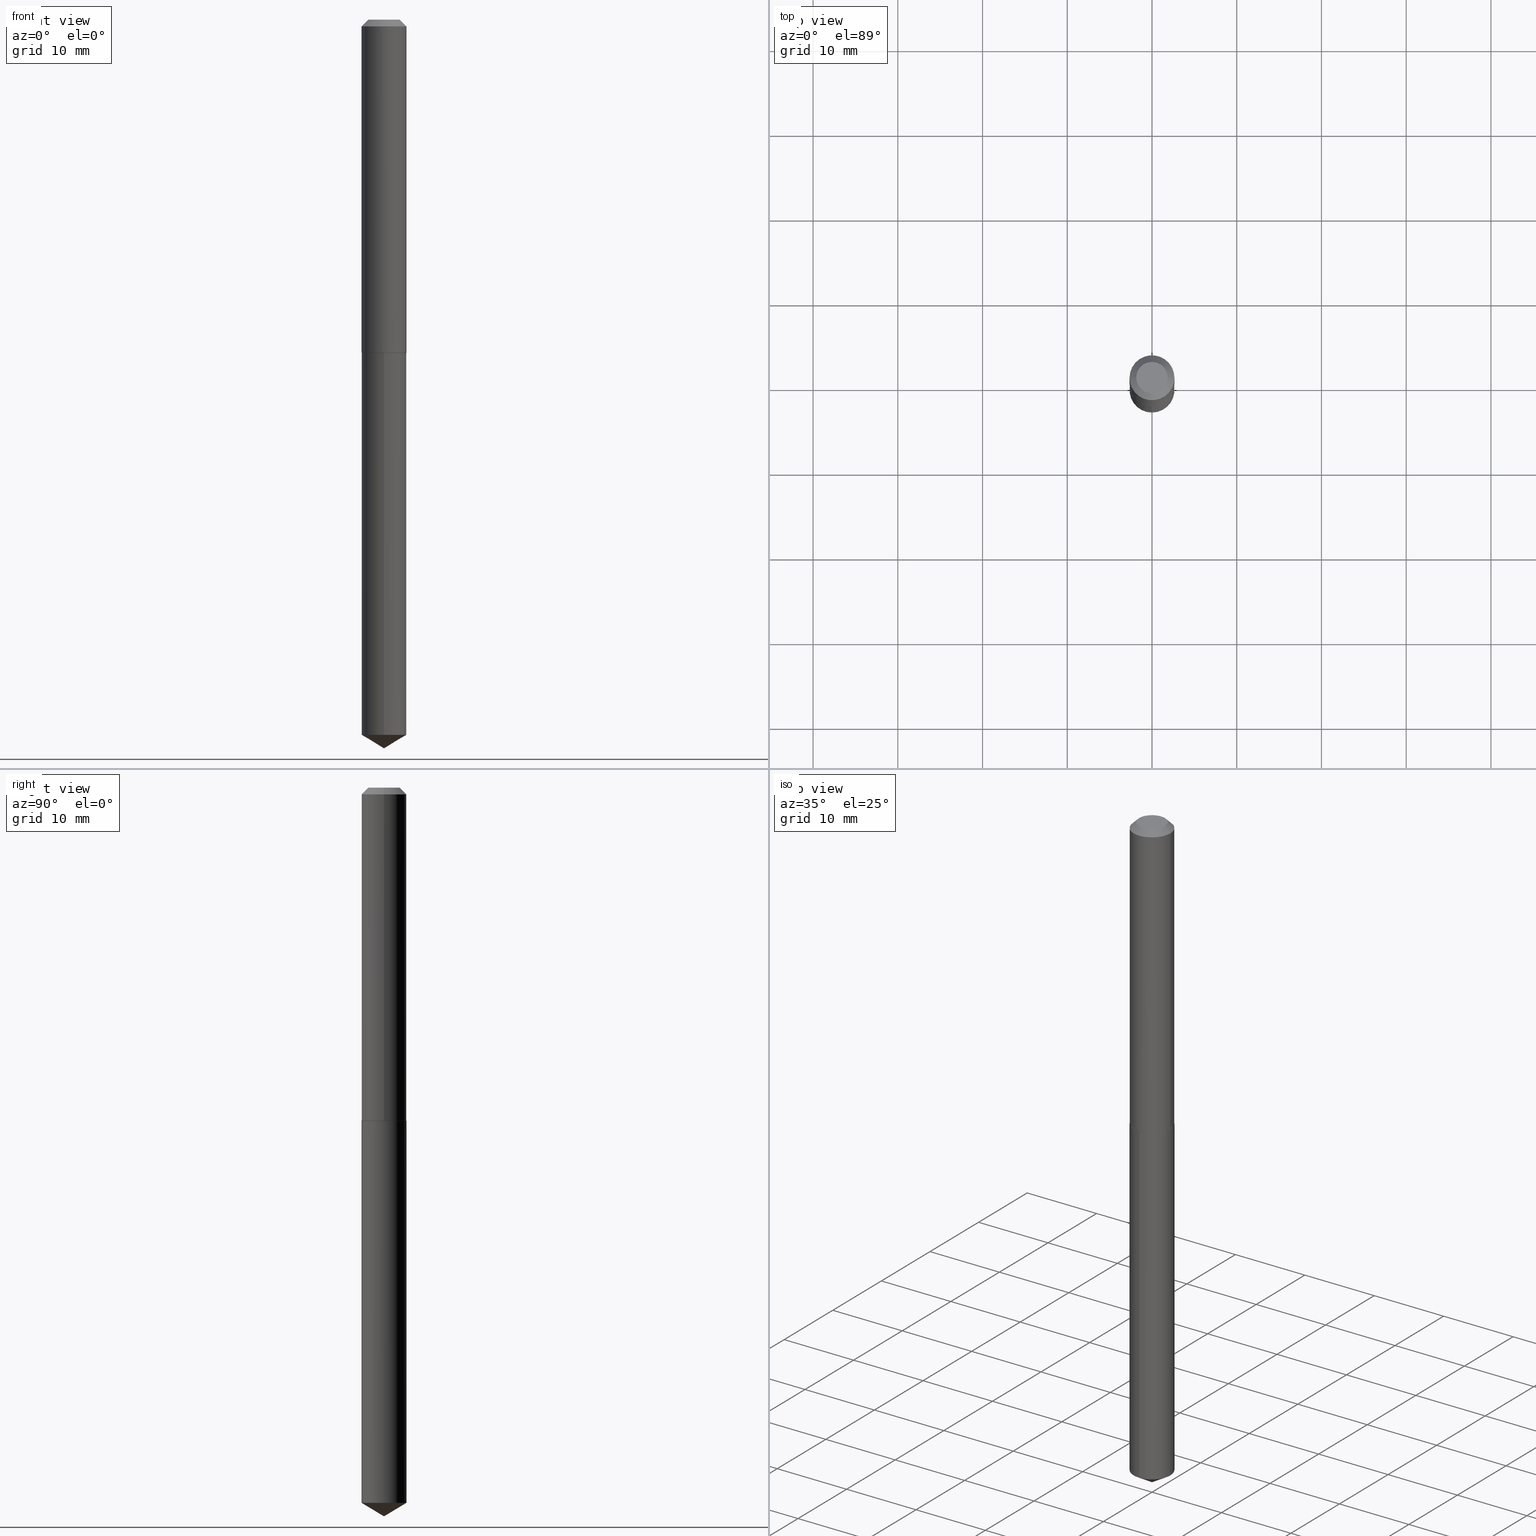
[diagram: canonical four-view strip — front | top / right | iso, engineering-drawing reading convention]
A machine part, canonical four-view strip (front | top / right | iso — engineering-drawing reading convention). The complete STEP part file that produces these views, byte-faithful:
ISO-10303-21;
HEADER;
FILE_DESCRIPTION (( 'STEP AP203' ),
    '1' );
FILE_NAME ('68328.STEP',
    '2024-04-23T13:06:53',
    ( '' ),
    ( '' ),
    'SwSTEP 2.0',
    'SolidWorks 2023',
    '' );
FILE_SCHEMA (( 'CONFIG_CONTROL_DESIGN' ));
ENDSEC;

DATA;
#1 = DIRECTION ( 'NONE',  ( -2.445468806185136597E-29, 3.491481338843145583E-15, 1.000000000000000000 ) ) ;
#2 = CC_DESIGN_PERSON_AND_ORGANIZATION_ASSIGNMENT ( #355, #148, ( #48 ) ) ;
#3 = AXIS2_PLACEMENT_3D ( 'NONE', #218, #166, #39 ) ;
#4 = LOCAL_TIME ( 9, 6, 53.00000000000000000, #24 ) ;
#5 = CARTESIAN_POINT ( 'NONE',  ( 8.279797466100925084E-29, -1.182155893229100407E-14, -3.385800000000000143 ) ) ;
#6 = CARTESIAN_POINT ( 'NONE',  ( 3.782651149407169365E-29, -5.400623334922577222E-15, -1.546799999999999953 ) ) ;
#7 = CARTESIAN_POINT ( 'NONE',  ( 3.782651149407169365E-29, -5.400623334922577222E-15, -1.546799999999999953 ) ) ;
#8 = DIRECTION ( 'NONE',  ( 0.7071067811866199593, -2.468850131083015945E-15, 0.7071067811864750752 ) ) ;
#9 = AXIS2_PLACEMENT_3D ( 'NONE', #322, #256, #81 ) ;
#10 = DIRECTION ( 'NONE',  ( -6.982962677686265922E-15, -1.000000000000000000, 2.617966452960482631E-15 ) ) ;
#11 = DESIGN_CONTEXT ( 'detailed design', #341, 'design' ) ;
#12 = DIRECTION ( 'NONE',  ( -2.445468806185136597E-29, 3.491481338843145583E-15, 1.000000000000000000 ) ) ;
#13 = ORIENTED_EDGE ( 'NONE', *, *, #211, .F. ) ;
#14 = APPROVAL ( #68, 'UNSPECIFIED' ) ;
#15 = DIRECTION ( 'NONE',  ( 6.982962677686265922E-15, 1.000000000000000000, -3.491511291951976331E-15 ) ) ;
#16 = ORIENTED_EDGE ( 'NONE', *, *, #40, .F. ) ;
#17 = LINE ( 'NONE', #229, #176 ) ;
#18 = ORIENTED_EDGE ( 'NONE', *, *, #237, .T. ) ;
#19 = EDGE_CURVE ( 'NONE', #64, #291, #369, .T. ) ;
#20 = CARTESIAN_POINT ( 'NONE',  ( 3.783873883810261045E-29, -5.402369075591997936E-15, -1.547299999999999676 ) ) ;
#21 = APPLICATION_CONTEXT ( 'configuration controlled 3d designs of mechanical parts and assemblies' ) ;
#22 = ORIENTED_EDGE ( 'NONE', *, *, #250, .T. ) ;
#23 = EDGE_CURVE ( 'NONE', #235, #386, #364, .T. ) ;
#24 = COORDINATED_UNIVERSAL_TIME_OFFSET ( 5, 0, .BEHIND. ) ;
#25 = DIRECTION ( 'NONE',  ( -6.982962677686265922E-15, -1.000000000000000000, 5.235932905920965262E-15 ) ) ;
#26 = MANIFOLD_SOLID_BREP ( 'Body-Move/Copy2[2]', #280 ) ;
#27 = DATE_AND_TIME ( #154, #66 ) ;
#28 = EDGE_LOOP ( 'NONE', ( #175, #182, #354, #53 ) ) ;
#29 = ADVANCED_FACE ( 'NONE', ( #311 ), #300, .T. ) ;
#30 = APPROVAL_ROLE ( '' ) ;
#31 = CC_DESIGN_APPROVAL ( #344, ( #85 ) ) ;
#32 = ORIENTED_EDGE ( 'NONE', *, *, #47, .F. ) ;
#33 = ADVANCED_FACE ( 'NONE', ( #152 ), #346, .T. ) ;
#34 = CARTESIAN_POINT ( 'NONE',  ( 3.783873883810261606E-29, -5.402369075591998725E-15, -1.547299999999999898 ) ) ;
#35 = PERSON_AND_ORGANIZATION ( #270, #72 ) ;
#36 = DIRECTION ( 'NONE',  ( 1.000000000000000000, -6.982962677686265133E-15, 4.876195246087108042E-29 ) ) ;
#37 = CONICAL_SURFACE ( 'NONE', #183, 0.1043500000000001787, 0.7853981633975507526 ) ;
#38 = LOCAL_TIME ( 9, 6, 53.00000000000000000, #245 ) ;
#39 = DIRECTION ( 'NONE',  ( -6.982962677686265922E-15, -1.000000000000000000, 3.468864327941594214E-15 ) ) ;
#40 = EDGE_CURVE ( 'NONE', #82, #241, #119, .T. ) ;
#41 = DIRECTION ( 'NONE',  ( -2.438088387897960049E-29, 3.491481338843145188E-15, 1.000000000000000000 ) ) ;
#42 = DIRECTION ( 'NONE',  ( -2.445468806185136597E-29, 3.491481338843145583E-15, 1.000000000000000000 ) ) ;
#43 = AXIS2_PLACEMENT_3D ( 'NONE', #267, #62, #25 ) ;
#44 = CARTESIAN_POINT ( 'NONE',  ( 7.414513447657459819E-16, 0.1043499999999945999, -1.547300000000000120 ) ) ;
#45 = LOCAL_TIME ( 9, 6, 53.00000000000000000, #268 ) ;
#46 = CARTESIAN_POINT ( 'NONE',  ( 7.414513447657022001E-16, 0.1043499999999945999, -1.547300000000000120 ) ) ;
#47 = EDGE_CURVE ( 'NONE', #241, #323, #180, .T. ) ;
#48 = PRODUCT ( '68328', '68328', '', ( #228 ) ) ;
#49 = EDGE_CURVE ( 'NONE', #386, #323, #71, .T. ) ;
#50 = FACE_OUTER_BOUND ( 'NONE', #201, .T. ) ;
#51 = DIRECTION ( 'NONE',  ( 1.000000000000000000, 0.000000000000000000, 0.000000000000000000 ) ) ;
#52 = CIRCLE ( 'NONE', #324, 0.1043499999999999844 ) ;
#53 = ORIENTED_EDGE ( 'NONE', *, *, #162, .F. ) ;
#54 = ADVANCED_FACE ( 'NONE', ( #389 ), #366, .T. ) ;
#55 = DIRECTION ( 'NONE',  ( 0.000000000000000000, 0.000000000000000000, 1.000000000000000000 ) ) ;
#56 = ADVANCED_FACE ( 'NONE', ( #244 ), #338, .T. ) ;
#57 = EDGE_LOOP ( 'NONE', ( #277, #293, #309, #155 ) ) ;
#58 = DIRECTION ( 'NONE',  ( -2.445468806185136597E-29, 3.491481338843145583E-15, 1.000000000000000000 ) ) ;
#59 = CALENDAR_DATE ( 2024, 23, 4 ) ;
#60 = APPROVAL ( #90, 'UNSPECIFIED' ) ;
#61 = ADVANCED_FACE ( 'NONE', ( #282 ), #202, .T. ) ;
#62 = DIRECTION ( 'NONE',  ( -2.445447890041031714E-29, 3.491511291951976726E-15, 1.000000000000000000 ) ) ;
#63 = PERSON_AND_ORGANIZATION ( #270, #72 ) ;
#64 = VERTEX_POINT ( 'NONE', #314 ) ;
#65 = APPROVAL_STATUS ( 'not_yet_approved' ) ;
#66 = LOCAL_TIME ( 9, 6, 53.00000000000000000, #272 ) ;
#67 = EDGE_LOOP ( 'NONE', ( #80, #177, #213 ) ) ;
#68 = APPROVAL_STATUS ( 'not_yet_approved' ) ;
#69 = CARTESIAN_POINT ( 'NONE',  ( 8.279862760780731163E-29, -1.182146623940041509E-14, -3.385800000000000143 ) ) ;
#70 = FACE_OUTER_BOUND ( 'NONE', #357, .T. ) ;
#71 = CIRCLE ( 'NONE', #127, 0.1043499999999999844 ) ;
#72 = ORGANIZATION ( 'UNSPECIFIED', 'UNSPECIFIED', '' ) ;
#73 = PLANE ( 'NONE',  #273 ) ;
#74 = EDGE_CURVE ( 'NONE', #235, #265, #307, .T. ) ;
#75 = DIRECTION ( 'NONE',  ( -6.982962677686265922E-15, -1.000000000000000000, 5.235932905920965262E-15 ) ) ;
#76 = CARTESIAN_POINT ( 'NONE',  ( 0.1043500000000000816, -7.286721554165625095E-16, 5.088290465543062912E-30 ) ) ;
#77 = AXIS2_PLACEMENT_3D ( 'NONE', #208, #147, #91 ) ;
#78 = CYLINDRICAL_SURFACE ( 'NONE', #196, 0.1043500000000000816 ) ;
#79 = LINE ( 'NONE', #46, #248 ) ;
#80 = ORIENTED_EDGE ( 'NONE', *, *, #179, .F. ) ;
#81 = DIRECTION ( 'NONE',  ( -1.000000000000000000, 6.982962677686266711E-15, 0.000000000000000000 ) ) ;
#82 = VERTEX_POINT ( 'NONE', #349 ) ;
#83 = CARTESIAN_POINT ( 'NONE',  ( 0.1043499999999999844, -8.377809472554109199E-16, -0.03125000000000020817 ) ) ;
#84 = AXIS2_PLACEMENT_3D ( 'NONE', #95, #215, #210 ) ;
#85 = PRODUCT_DEFINITION_FORMATION_WITH_SPECIFIED_SOURCE ( 'ANY', '', #48, .NOT_KNOWN. ) ;
#86 = ORIENTED_EDGE ( 'NONE', *, *, #94, .T. ) ;
#87 = ORIENTED_EDGE ( 'NONE', *, *, #169, .F. ) ;
#88 = EDGE_CURVE ( 'NONE', #323, #386, #159, .T. ) ;
#89 = CC_DESIGN_PERSON_AND_ORGANIZATION_ASSIGNMENT ( #117, #310, ( #360 ) ) ;
#90 = APPROVAL_STATUS ( 'not_yet_approved' ) ;
#91 = DIRECTION ( 'NONE',  ( 1.000000000000000000, -6.982962677686266711E-15, 4.876176775795935793E-29 ) ) ;
#92 = DATE_AND_TIME ( #186, #308 ) ;
#93 = CARTESIAN_POINT ( 'NONE',  ( 3.783873883810261606E-29, -5.402369075591998725E-15, -1.547299999999999898 ) ) ;
#94 = EDGE_CURVE ( 'NONE', #258, #241, #317, .T. ) ;
#95 = CARTESIAN_POINT ( 'NONE',  ( 7.642090019328602662E-31, -1.091087918388490267E-16, -0.03125000000000020817 ) ) ;
#96 = CIRCLE ( 'NONE', #184, 0.1038500000000004558 ) ;
#97 = APPROVAL_PERSON_ORGANIZATION ( #35, #60, #30 ) ;
#98 = LINE ( 'NONE', #76, #286 ) ;
#99 = DIRECTION ( 'NONE',  ( -2.445447890041031714E-29, 3.491511291951976726E-15, 1.000000000000000000 ) ) ;
#100 = DIRECTION ( 'NONE',  ( -2.445468806185136877E-29, 3.491481338843145188E-15, 1.000000000000000000 ) ) ;
#101 = AXIS2_PLACEMENT_3D ( 'NONE', #111, #377, #15 ) ;
#102 = DIRECTION ( 'NONE',  ( -6.982962677686265922E-15, -1.000000000000000000, 3.468864327941594214E-15 ) ) ;
#103 =( NAMED_UNIT ( * ) SI_UNIT ( $, .STERADIAN. ) SOLID_ANGLE_UNIT ( ) );
#104 = DIRECTION ( 'NONE',  ( -2.445468806185136597E-29, 3.491481338843145583E-15, 1.000000000000000000 ) ) ;
#105 = ADVANCED_FACE ( 'NONE', ( #70 ), #73, .F. ) ;
#106 = DIRECTION ( 'NONE',  ( -2.445468806185136597E-29, 3.491481338843145583E-15, 1.000000000000000000 ) ) ;
#107 = CLOSED_SHELL ( 'NONE', ( #54, #61, #230, #56, #340 ) ) ;
#108 = ORIENTED_EDGE ( 'NONE', *, *, #289, .T. ) ;
#109 = CARTESIAN_POINT ( 'NONE',  ( 3.782651149407169365E-29, -5.400623334922577222E-15, -1.546799999999999953 ) ) ;
#110 = ORIENTED_EDGE ( 'NONE', *, *, #88, .F. ) ;
#111 = CARTESIAN_POINT ( 'NONE',  ( 3.783873883810261606E-29, -5.402369075591998725E-15, -1.547299999999999898 ) ) ;
#112 = ORIENTED_EDGE ( 'NONE', *, *, #266, .T. ) ;
#113 = AXIS2_PLACEMENT_3D ( 'NONE', #7, #104, #347 ) ;
#114 = ORIENTED_EDGE ( 'NONE', *, *, #348, .T. ) ;
#115 = PERSON_AND_ORGANIZATION ( #270, #72 ) ;
#116 = CARTESIAN_POINT ( 'NONE',  ( 3.782651149407169365E-29, -5.400623334922577222E-15, -1.546799999999999953 ) ) ;
#117 = PERSON_AND_ORGANIZATION ( #270, #72 ) ;
#118 = EDGE_LOOP ( 'NONE', ( #362, #205, #329 ) ) ;
#119 = CIRCLE ( 'NONE', #194, 0.1043500000000001787 ) ;
#120 = DATE_TIME_ROLE ( 'creation_date' ) ;
#121 = ADVANCED_FACE ( 'NONE', ( #254 ), #37, .T. ) ;
#122 = ORIENTED_EDGE ( 'NONE', *, *, #211, .T. ) ;
#123 = SHAPE_DEFINITION_REPRESENTATION ( #151, #189 ) ;
#124 = DIRECTION ( 'NONE',  ( 1.000000000000000000, -6.982962677686266711E-15, 0.000000000000000000 ) ) ;
#125 = DIRECTION ( 'NONE',  ( -2.445447890041031714E-29, 3.491511291951976726E-15, 1.000000000000000000 ) ) ;
#126 = EDGE_CURVE ( 'NONE', #384, #291, #191, .T. ) ;
#127 = AXIS2_PLACEMENT_3D ( 'NONE', #243, #1, #124 ) ;
#128 = AXIS2_PLACEMENT_3D ( 'NONE', #168, #106, #197 ) ;
#129 = DIRECTION ( 'NONE',  ( -5.985567269335943646E-15, -0.8571673007021105573, 0.5150380749100571531 ) ) ;
#130 = DIRECTION ( 'NONE',  ( 6.090539988449779224E-15, 0.8571673007021141100, 0.5150380749100511579 ) ) ;
#131 = CARTESIAN_POINT ( 'NONE',  ( -2.994835545909310251E-48, 4.275831445896950368E-34, 1.224646799147346403E-19 ) ) ;
#132 = DIRECTION ( 'NONE',  ( -2.445468806185136597E-29, 3.491481338843145583E-15, 1.000000000000000000 ) ) ;
#133 = FACE_OUTER_BOUND ( 'NONE', #370, .T. ) ;
#134 = DIRECTION ( 'NONE',  ( -2.445447890041031714E-29, 3.491511291951976331E-15, 1.000000000000000000 ) ) ;
#135 = ORIENTED_EDGE ( 'NONE', *, *, #257, .T. ) ;
#136 = CARTESIAN_POINT ( 'NONE',  ( 7.414513447657457846E-16, 0.1043499999999883965, -3.323100194404474905 ) ) ;
#137 =( GEOMETRIC_REPRESENTATION_CONTEXT ( 3 ) GLOBAL_UNCERTAINTY_ASSIGNED_CONTEXT ( ( #167 ) ) GLOBAL_UNIT_ASSIGNED_CONTEXT ( ( #328, #376, #103 ) ) REPRESENTATION_CONTEXT ( 'NONE', 'WORKASPACE' ) );
#138 = DIRECTION ( 'NONE',  ( -6.982962677686265922E-15, -1.000000000000000000, 2.617966452960482631E-15 ) ) ;
#139 = CC_DESIGN_PERSON_AND_ORGANIZATION_ASSIGNMENT ( #368, #239, ( #85 ) ) ;
#140 = ORIENTED_EDGE ( 'NONE', *, *, #257, .F. ) ;
#141 = CARTESIAN_POINT ( 'NONE',  ( 3.783873883810261606E-29, -5.402369075591998725E-15, -1.547299999999999898 ) ) ;
#142 = VERTEX_POINT ( 'NONE', #255 ) ;
#143 = AXIS2_PLACEMENT_3D ( 'NONE', #34, #125, #10 ) ;
#144 = VECTOR ( 'NONE', #134, 39.37007874015748143 ) ;
#145 = ORIENTED_EDGE ( 'NONE', *, *, #299, .F. ) ;
#146 = ADVANCED_FACE ( 'NONE', ( #133 ), #279, .F. ) ;
#147 = DIRECTION ( 'NONE',  ( -2.445468806185136597E-29, 3.491481338843145583E-15, 1.000000000000000000 ) ) ;
#148 = PERSON_AND_ORGANIZATION_ROLE ( 'design_owner' ) ;
#149 = VERTEX_POINT ( 'NONE', #372 ) ;
#150 = PERSON_AND_ORGANIZATION_ROLE ( 'creator' ) ;
#151 = PRODUCT_DEFINITION_SHAPE ( 'NONE', 'NONE',  #360 ) ;
#152 = FACE_OUTER_BOUND ( 'NONE', #198, .T. ) ;
#153 = CIRCLE ( 'NONE', #128, 0.07309999999999999831 ) ;
#154 = CALENDAR_DATE ( 2024, 23, 4 ) ;
#155 = ORIENTED_EDGE ( 'NONE', *, *, #348, .F. ) ;
#156 = DATE_AND_TIME ( #312, #45 ) ;
#157 = DIRECTION ( 'NONE',  ( -2.445447890041031714E-29, 3.491511291951976726E-15, 1.000000000000000000 ) ) ;
#158 = DIRECTION ( 'NONE',  ( -2.445447890041031714E-29, 3.491511291951976726E-15, 1.000000000000000000 ) ) ;
#159 = CIRCLE ( 'NONE', #388, 0.1043499999999999844 ) ;
#160 = CC_DESIGN_APPROVAL ( #60, ( #224 ) ) ;
#161 = MANIFOLD_SOLID_BREP ( 'Body-Move/Copy2[1]', #107 ) ;
#162 = EDGE_CURVE ( 'NONE', #82, #386, #98, .T. ) ;
#163 = DIRECTION ( 'NONE',  ( -0.7071067811866199593, 7.493145998870616062E-15, 0.7071067811864750752 ) ) ;
#164 = LINE ( 'NONE', #5, #220 ) ;
#165 = DIRECTION ( 'NONE',  ( 1.000000000000000000, -6.982962677686264344E-15, 0.000000000000000000 ) ) ;
#166 = DIRECTION ( 'NONE',  ( -2.445447890041031714E-29, 3.491511291951976726E-15, 1.000000000000000000 ) ) ;
#167 = UNCERTAINTY_MEASURE_WITH_UNIT (LENGTH_MEASURE( 1.000000000000000082E-05 ), #328, 'distance_accuracy_value', 'NONE');
#168 = CARTESIAN_POINT ( 'NONE',  ( -5.989671091818620503E-48, 8.551662891793900737E-34, 2.449293598294692806E-19 ) ) ;
#169 = EDGE_CURVE ( 'NONE', #241, #82, #240, .T. ) ;
#170 = PLANE ( 'NONE',  #101 ) ;
#171 = EDGE_LOOP ( 'NONE', ( #178, #86, #16, #13 ) ) ;
#172 = AXIS2_PLACEMENT_3D ( 'NONE', #345, #283, #36 ) ;
#173 = LENGTH_MEASURE_WITH_UNIT ( LENGTH_MEASURE( 0.02539999999999999897 ), #200 );
#174 = DIRECTION ( 'NONE',  ( -2.445447890041031714E-29, 3.491511291951976726E-15, 1.000000000000000000 ) ) ;
#175 = ORIENTED_EDGE ( 'NONE', *, *, #40, .T. ) ;
#176 = VECTOR ( 'NONE', #353, 39.37007874015748143 ) ;
#177 = ORIENTED_EDGE ( 'NONE', *, *, #126, .T. ) ;
#178 = ORIENTED_EDGE ( 'NONE', *, *, #351, .T. ) ;
#179 = EDGE_CURVE ( 'NONE', #384, #64, #164, .T. ) ;
#180 = LINE ( 'NONE', #304, #318 ) ;
#181 = DATE_AND_TIME ( #278, #38 ) ;
#182 = ORIENTED_EDGE ( 'NONE', *, *, #47, .T. ) ;
#183 = AXIS2_PLACEMENT_3D ( 'NONE', #6, #132, #188 ) ;
#184 = AXIS2_PLACEMENT_3D ( 'NONE', #222, #42, #165 ) ;
#185 = ORIENTED_EDGE ( 'NONE', *, *, #169, .T. ) ;
#186 = CALENDAR_DATE ( 2024, 23, 4 ) ;
#187 = CARTESIAN_POINT ( 'NONE',  ( 0.07309999999999999831, -6.632520807717034762E-16, 2.449293598335726669E-19 ) ) ;
#188 = DIRECTION ( 'NONE',  ( 1.000000000000000000, -6.982962677686269077E-15, 0.000000000000000000 ) ) ;
#189 = ADVANCED_BREP_SHAPE_REPRESENTATION ( '68328', ( #161, #26, #233 ), #137 ) ;
#190 = CONICAL_SURFACE ( 'NONE', #294, 65.52281426576843160, 1.029744258676654534 ) ;
#191 = LINE ( 'NONE', #69, #259 ) ;
#192 = CARTESIAN_POINT ( 'NONE',  ( 3.783873883810261606E-29, -5.402369075591998725E-15, -1.547299999999999898 ) ) ;
#193 = FACE_OUTER_BOUND ( 'NONE', #118, .T. ) ;
#194 = AXIS2_PLACEMENT_3D ( 'NONE', #116, #58, #275 ) ;
#195 = APPLICATION_PROTOCOL_DEFINITION ( 'international standard', 'config_control_design', 1994, #21 ) ;
#196 = AXIS2_PLACEMENT_3D ( 'NONE', #225, #12, #352 ) ;
#197 = DIRECTION ( 'NONE',  ( 1.000000000000000000, -6.982962677686265133E-15, 4.876195246087108042E-29 ) ) ;
#198 = EDGE_LOOP ( 'NONE', ( #296, #206, #114, #330 ) ) ;
#199 = CC_DESIGN_DATE_AND_TIME_ASSIGNMENT ( #92, #334, ( #224 ) ) ;
#200 =( LENGTH_UNIT ( ) NAMED_UNIT ( * ) SI_UNIT ( $, .METRE. ) );
#201 = EDGE_LOOP ( 'NONE', ( #22, #359 ) ) ;
#202 = CONICAL_SURFACE ( 'NONE', #3, 65.52281426576843160, 1.029744258676654534 ) ;
#203 = CONICAL_SURFACE ( 'NONE', #216, 0.1043500000000001787, 0.7853981633975507526 ) ;
#204 = ORIENTED_EDGE ( 'NONE', *, *, #94, .F. ) ;
#205 = ORIENTED_EDGE ( 'NONE', *, *, #179, .T. ) ;
#206 = ORIENTED_EDGE ( 'NONE', *, *, #266, .F. ) ;
#207 = AXIS2_PLACEMENT_3D ( 'NONE', #141, #174, #138 ) ;
#208 = CARTESIAN_POINT ( 'NONE',  ( 0.000000000000000000, 0.000000000000000000, 0.000000000000000000 ) ) ;
#209 = APPROVAL_DATE_TIME ( #181, #60 ) ;
#210 = DIRECTION ( 'NONE',  ( -1.000000000000000000, 6.982962677686266711E-15, 0.000000000000000000 ) ) ;
#211 = EDGE_CURVE ( 'NONE', #149, #82, #217, .T. ) ;
#212 = CC_DESIGN_PERSON_AND_ORGANIZATION_ASSIGNMENT ( #214, #242, ( #224 ) ) ;
#213 = ORIENTED_EDGE ( 'NONE', *, *, #19, .F. ) ;
#214 = PERSON_AND_ORGANIZATION ( #270, #72 ) ;
#215 = DIRECTION ( 'NONE',  ( 2.445468806185136597E-29, -3.491481338843145583E-15, -1.000000000000000000 ) ) ;
#216 = AXIS2_PLACEMENT_3D ( 'NONE', #109, #382, #320 ) ;
#217 = LINE ( 'NONE', #252, #223 ) ;
#218 = CARTESIAN_POINT ( 'NONE',  ( -8.799764615621668575E-28, 1.256395619004525932E-13, 35.98427874015747818 ) ) ;
#219 = CARTESIAN_POINT ( 'NONE',  ( 7.642090019328602662E-31, -1.091087918388490267E-16, -0.03125000000000020817 ) ) ;
#220 = VECTOR ( 'NONE', #129, 39.37007874015748143 ) ;
#221 = DIRECTION ( 'NONE',  ( 2.438088387897960049E-29, -3.491481338843145188E-15, -1.000000000000000000 ) ) ;
#222 = CARTESIAN_POINT ( 'NONE',  ( 3.783873883810261045E-29, -5.402369075591997936E-15, -1.547299999999999676 ) ) ;
#223 = VECTOR ( 'NONE', #8, 39.37007874015748143 ) ;
#224 = SECURITY_CLASSIFICATION ( '', '', #363 ) ;
#225 = CARTESIAN_POINT ( 'NONE',  ( 0.000000000000000000, 0.000000000000000000, 0.000000000000000000 ) ) ;
#226 = EDGE_LOOP ( 'NONE', ( #234, #18, #108, #145 ) ) ;
#227 = FACE_OUTER_BOUND ( 'NONE', #57, .T. ) ;
#228 = MECHANICAL_CONTEXT ( 'NONE', #21, 'mechanical' ) ;
#229 = CARTESIAN_POINT ( 'NONE',  ( -0.1043499999999999844, 6.195633635777128172E-16, -0.03125000000000020817 ) ) ;
#230 = ADVANCED_FACE ( 'NONE', ( #193 ), #190, .T. ) ;
#231 = EDGE_LOOP ( 'NONE', ( #32, #185, #367, #110 ) ) ;
#232 = AXIS2_PLACEMENT_3D ( 'NONE', #315, #41, #251 ) ;
#233 = AXIS2_PLACEMENT_3D ( 'NONE', #326, #55, #51 ) ;
#234 = ORIENTED_EDGE ( 'NONE', *, *, #306, .F. ) ;
#235 = VERTEX_POINT ( 'NONE', #187 ) ;
#236 = APPROVAL_ROLE ( '' ) ;
#237 = EDGE_CURVE ( 'NONE', #291, #64, #52, .T. ) ;
#238 = DIRECTION ( 'NONE',  ( 0.7071067811865451302, -7.319954787623248157E-15, -0.7071067811865499042 ) ) ;
#239 = PERSON_AND_ORGANIZATION_ROLE ( 'design_supplier' ) ;
#240 = CIRCLE ( 'NONE', #113, 0.1043500000000001787 ) ;
#241 = VERTEX_POINT ( 'NONE', #371 ) ;
#242 = PERSON_AND_ORGANIZATION_ROLE ( 'classification_officer' ) ;
#243 = CARTESIAN_POINT ( 'NONE',  ( 7.642090019328602662E-31, -1.091087918388490267E-16, -0.03125000000000020817 ) ) ;
#244 = FACE_OUTER_BOUND ( 'NONE', #226, .T. ) ;
#245 = COORDINATED_UNIVERSAL_TIME_OFFSET ( 5, 0, .BEHIND. ) ;
#246 = ORIENTED_EDGE ( 'NONE', *, *, #74, .T. ) ;
#247 = AXIS2_PLACEMENT_3D ( 'NONE', #93, #157, #335 ) ;
#248 = VECTOR ( 'NONE', #260, 39.37007874015748143 ) ;
#249 = CARTESIAN_POINT ( 'NONE',  ( -8.799764615621668575E-28, 1.256395619004525932E-13, 35.98427874015747818 ) ) ;
#250 = EDGE_CURVE ( 'NONE', #142, #262, #253, .T. ) ;
#251 = DIRECTION ( 'NONE',  ( 1.000000000000000000, -6.982962677686265922E-15, 4.876176775795935793E-29 ) ) ;
#252 = CARTESIAN_POINT ( 'NONE',  ( 0.1043500000000001787, -6.129295490339141210E-15, -1.546799999999999953 ) ) ;
#253 = CIRCLE ( 'NONE', #336, 0.1043499999999999844 ) ;
#254 = FACE_OUTER_BOUND ( 'NONE', #171, .T. ) ;
#255 = CARTESIAN_POINT ( 'NONE',  ( -7.286721554165238553E-16, -0.1043500000000053829, -1.547299999999999676 ) ) ;
#256 = DIRECTION ( 'NONE',  ( 2.445468806185136597E-29, -3.491481338843145583E-15, -1.000000000000000000 ) ) ;
#257 = EDGE_CURVE ( 'NONE', #258, #149, #96, .T. ) ;
#258 = VERTEX_POINT ( 'NONE', #285 ) ;
#259 = VECTOR ( 'NONE', #130, 39.37007874015748143 ) ;
#260 = DIRECTION ( 'NONE',  ( -2.445447890041031714E-29, 3.491511291951976331E-15, 1.000000000000000000 ) ) ;
#261 = FACE_OUTER_BOUND ( 'NONE', #321, .T. ) ;
#262 = VERTEX_POINT ( 'NONE', #44 ) ;
#263 = DIRECTION ( 'NONE',  ( 1.000000000000000000, -6.982962677686264344E-15, 0.000000000000000000 ) ) ;
#264 = CC_DESIGN_SECURITY_CLASSIFICATION ( #224, ( #85 ) ) ;
#265 = VERTEX_POINT ( 'NONE', #290 ) ;
#266 = EDGE_CURVE ( 'NONE', #265, #235, #153, .T. ) ;
#267 = CARTESIAN_POINT ( 'NONE',  ( 8.126500722351138836E-29, -1.160259550660573708E-14, -3.323100194404474461 ) ) ;
#268 = COORDINATED_UNIVERSAL_TIME_OFFSET ( 5, 0, .BEHIND. ) ;
#269 = CC_DESIGN_PERSON_AND_ORGANIZATION_ASSIGNMENT ( #339, #150, ( #85 ) ) ;
#270 = PERSON ( 'UNSPECIFIED', 'UNSPECIFIED', 'UNSPECIFIED', ('UNSPECIFIED'), ('UNSPECIFIED'), ('UNSPECIFIED') ) ;
#271 = ORIENTED_EDGE ( 'NONE', *, *, #306, .T. ) ;
#272 = COORDINATED_UNIVERSAL_TIME_OFFSET ( 5, 0, .BEHIND. ) ;
#273 = AXIS2_PLACEMENT_3D ( 'NONE', #131, #221, #373 ) ;
#274 = CIRCLE ( 'NONE', #207, 0.1043499999999999844 ) ;
#275 = DIRECTION ( 'NONE',  ( 1.000000000000000000, -6.982962677686269077E-15, 0.000000000000000000 ) ) ;
#276 = CARTESIAN_POINT ( 'NONE',  ( 0.1043499999999999844, -8.250017579063083057E-16, -0.03125000000000020817 ) ) ;
#277 = ORIENTED_EDGE ( 'NONE', *, *, #74, .F. ) ;
#278 = CALENDAR_DATE ( 2024, 23, 4 ) ;
#279 = PLANE ( 'NONE',  #232 ) ;
#280 = CLOSED_SHELL ( 'NONE', ( #374, #281, #121, #146, #331, #29, #33, #105 ) ) ;
#281 = ADVANCED_FACE ( 'NONE', ( #295 ), #78, .T. ) ;
#282 = FACE_OUTER_BOUND ( 'NONE', #67, .T. ) ;
#283 = DIRECTION ( 'NONE',  ( -2.445468806185136597E-29, 3.491481338843145583E-15, 1.000000000000000000 ) ) ;
#284 = CC_DESIGN_DATE_AND_TIME_ASSIGNMENT ( #301, #120, ( #360 ) ) ;
#285 = CARTESIAN_POINT ( 'NONE',  ( -0.1038500000000004558, -4.661821217331020341E-15, -1.547299999999999676 ) ) ;
#286 = VECTOR ( 'NONE', #100, 39.37007874015748143 ) ;
#287 = CIRCLE ( 'NONE', #327, 0.1038500000000004558 ) ;
#288 = DIRECTION ( 'NONE',  ( 1.000000000000000000, -6.982962677686266711E-15, 0.000000000000000000 ) ) ;
#289 = EDGE_CURVE ( 'NONE', #64, #142, #383, .T. ) ;
#290 = CARTESIAN_POINT ( 'NONE',  ( -0.07309999999999999831, 5.650089676582893516E-16, 2.449293598257089505E-19 ) ) ;
#291 = VERTEX_POINT ( 'NONE', #136 ) ;
#292 = DIRECTION ( 'NONE',  ( -2.445468806185136597E-29, 3.491481338843145583E-15, 1.000000000000000000 ) ) ;
#293 = ORIENTED_EDGE ( 'NONE', *, *, #23, .T. ) ;
#294 = AXIS2_PLACEMENT_3D ( 'NONE', #249, #342, #102 ) ;
#295 = FACE_OUTER_BOUND ( 'NONE', #28, .T. ) ;
#296 = ORIENTED_EDGE ( 'NONE', *, *, #23, .F. ) ;
#297 = EDGE_LOOP ( 'NONE', ( #302, #271, #332, #378 ) ) ;
#298 = VECTOR ( 'NONE', #163, 39.37007874015748143 ) ;
#299 = EDGE_CURVE ( 'NONE', #262, #142, #274, .T. ) ;
#300 = CYLINDRICAL_SURFACE ( 'NONE', #77, 0.1043500000000000816 ) ;
#301 = DATE_AND_TIME ( #59, #4 ) ;
#302 = ORIENTED_EDGE ( 'NONE', *, *, #19, .T. ) ;
#303 = APPROVAL_DATE_TIME ( #27, #344 ) ;
#304 = CARTESIAN_POINT ( 'NONE',  ( -0.1043500000000000816, 7.414513447656651236E-16, -5.132908766680998310E-30 ) ) ;
#305 = APPROVAL_DATE_TIME ( #156, #14 ) ;
#306 = EDGE_CURVE ( 'NONE', #291, #262, #79, .T. ) ;
#307 = CIRCLE ( 'NONE', #172, 0.07309999999999999831 ) ;
#308 = LOCAL_TIME ( 9, 6, 53.00000000000000000, #365 ) ;
#309 = ORIENTED_EDGE ( 'NONE', *, *, #49, .T. ) ;
#310 = PERSON_AND_ORGANIZATION_ROLE ( 'creator' ) ;
#311 = FACE_OUTER_BOUND ( 'NONE', #231, .T. ) ;
#312 = CALENDAR_DATE ( 2024, 23, 4 ) ;
#313 = CARTESIAN_POINT ( 'NONE',  ( 8.126500722351138836E-29, -1.160259550660573708E-14, -3.323100194404474461 ) ) ;
#314 = CARTESIAN_POINT ( 'NONE',  ( -7.286721554164805666E-16, -0.1043500000000116140, -3.323100194404473573 ) ) ;
#315 = CARTESIAN_POINT ( 'NONE',  ( 6.626136978695149942E-29, -1.332086552147888530E-15, -1.547299999999999676 ) ) ;
#316 = DIRECTION ( 'NONE',  ( -6.982962677686265922E-15, -1.000000000000000000, 2.617966452960482631E-15 ) ) ;
#317 = LINE ( 'NONE', #343, #298 ) ;
#318 = VECTOR ( 'NONE', #390, 39.37007874015748143 ) ;
#319 = CARTESIAN_POINT ( 'NONE',  ( -7.286721554165238553E-16, -0.1043500000000053829, -1.547299999999999676 ) ) ;
#320 = DIRECTION ( 'NONE',  ( 1.000000000000000000, -6.982962677686269077E-15, 0.000000000000000000 ) ) ;
#321 = EDGE_LOOP ( 'NONE', ( #204, #135, #122, #87 ) ) ;
#322 = CARTESIAN_POINT ( 'NONE',  ( 7.642090019328602662E-31, -1.091087918388490267E-16, -0.03125000000000020817 ) ) ;
#323 = VERTEX_POINT ( 'NONE', #380 ) ;
#324 = AXIS2_PLACEMENT_3D ( 'NONE', #313, #158, #75 ) ;
#325 = APPROVAL_PERSON_ORGANIZATION ( #63, #344, #385 ) ;
#326 = CARTESIAN_POINT ( 'NONE',  ( 0.000000000000000000, 0.000000000000000000, 0.000000000000000000 ) ) ;
#327 = AXIS2_PLACEMENT_3D ( 'NONE', #20, #292, #263 ) ;
#328 =( CONVERSION_BASED_UNIT ( 'INCH', #173 ) LENGTH_UNIT ( ) NAMED_UNIT ( #361 ) );
#329 = ORIENTED_EDGE ( 'NONE', *, *, #237, .F. ) ;
#330 = ORIENTED_EDGE ( 'NONE', *, *, #88, .T. ) ;
#331 = ADVANCED_FACE ( 'NONE', ( #261 ), #203, .T. ) ;
#332 = ORIENTED_EDGE ( 'NONE', *, *, #250, .F. ) ;
#333 = ORIENTED_EDGE ( 'NONE', *, *, #351, .F. ) ;
#334 = DATE_TIME_ROLE ( 'classification_date' ) ;
#335 = DIRECTION ( 'NONE',  ( -6.982962677686265922E-15, -1.000000000000000000, 2.617966452960482631E-15 ) ) ;
#336 = AXIS2_PLACEMENT_3D ( 'NONE', #192, #99, #316 ) ;
#337 = CC_DESIGN_APPROVAL ( #14, ( #360 ) ) ;
#338 = CYLINDRICAL_SURFACE ( 'NONE', #143, 0.1043499999999999844 ) ;
#339 = PERSON_AND_ORGANIZATION ( #270, #72 ) ;
#340 = ADVANCED_FACE ( 'NONE', ( #50 ), #170, .F. ) ;
#341 = APPLICATION_CONTEXT ( 'configuration controlled 3d designs of mechanical parts and assemblies' ) ;
#342 = DIRECTION ( 'NONE',  ( -2.445447890041031714E-29, 3.491511291951976726E-15, 1.000000000000000000 ) ) ;
#343 = CARTESIAN_POINT ( 'NONE',  ( -0.1043500000000001787, -4.659171990156911506E-15, -1.546799999999999953 ) ) ;
#344 = APPROVAL ( #65, 'UNSPECIFIED' ) ;
#345 = CARTESIAN_POINT ( 'NONE',  ( -5.989671091818620503E-48, 8.551662891793900737E-34, 2.449293598294692806E-19 ) ) ;
#346 = CONICAL_SURFACE ( 'NONE', #84, 0.1043499999999999844, 0.7853981633974449483 ) ;
#347 = DIRECTION ( 'NONE',  ( 1.000000000000000000, -6.982962677686269077E-15, 0.000000000000000000 ) ) ;
#348 = EDGE_CURVE ( 'NONE', #265, #323, #17, .T. ) ;
#349 = CARTESIAN_POINT ( 'NONE',  ( 0.1043500000000001787, -6.129295490339141210E-15, -1.546799999999999953 ) ) ;
#350 = CONICAL_SURFACE ( 'NONE', #9, 0.1043499999999999844, 0.7853981633974449483 ) ;
#351 = EDGE_CURVE ( 'NONE', #149, #258, #287, .T. ) ;
#352 = DIRECTION ( 'NONE',  ( 1.000000000000000000, -6.982962677686266711E-15, 4.876176775795935793E-29 ) ) ;
#353 = DIRECTION ( 'NONE',  ( -0.7071067811865451302, 2.468850131082231817E-15, -0.7071067811865499042 ) ) ;
#354 = ORIENTED_EDGE ( 'NONE', *, *, #49, .F. ) ;
#355 = PERSON_AND_ORGANIZATION ( #270, #72 ) ;
#356 = CARTESIAN_POINT ( 'NONE',  ( 8.279797466100925084E-29, -1.182155893229100407E-14, -3.385800000000000143 ) ) ;
#357 = EDGE_LOOP ( 'NONE', ( #112, #246 ) ) ;
#358 = VECTOR ( 'NONE', #238, 39.37007874015748143 ) ;
#359 = ORIENTED_EDGE ( 'NONE', *, *, #299, .T. ) ;
#360 = PRODUCT_DEFINITION ( 'UNKNOWN', '', #85, #11 ) ;
#361 = DIMENSIONAL_EXPONENTS ( 1.000000000000000000, 0.000000000000000000, 0.000000000000000000, 0.000000000000000000, 0.000000000000000000, 0.000000000000000000, 0.000000000000000000 ) ;
#362 = ORIENTED_EDGE ( 'NONE', *, *, #126, .F. ) ;
#363 = SECURITY_CLASSIFICATION_LEVEL ( 'unclassified' ) ;
#364 = LINE ( 'NONE', #276, #358 ) ;
#365 = COORDINATED_UNIVERSAL_TIME_OFFSET ( 5, 0, .BEHIND. ) ;
#366 = CYLINDRICAL_SURFACE ( 'NONE', #247, 0.1043499999999999844 ) ;
#367 = ORIENTED_EDGE ( 'NONE', *, *, #162, .T. ) ;
#368 = PERSON_AND_ORGANIZATION ( #270, #72 ) ;
#369 = CIRCLE ( 'NONE', #43, 0.1043499999999999844 ) ;
#370 = EDGE_LOOP ( 'NONE', ( #333, #140 ) ) ;
#371 = CARTESIAN_POINT ( 'NONE',  ( -0.1043500000000001787, -4.659171990156911506E-15, -1.546799999999999953 ) ) ;
#372 = CARTESIAN_POINT ( 'NONE',  ( 0.1038500000000004558, -6.127549749669719707E-15, -1.547299999999999676 ) ) ;
#373 = DIRECTION ( 'NONE',  ( -1.000000000000000000, 6.982962677686265922E-15, -4.876176775795935793E-29 ) ) ;
#374 = ADVANCED_FACE ( 'NONE', ( #227 ), #350, .T. ) ;
#375 = DIRECTION ( 'NONE',  ( -2.445468806185136597E-29, 3.491481338843145583E-15, 1.000000000000000000 ) ) ;
#376 =( NAMED_UNIT ( * ) PLANE_ANGLE_UNIT ( ) SI_UNIT ( $, .RADIAN. ) );
#377 = DIRECTION ( 'NONE',  ( 2.445447890041031714E-29, -3.491511291951976331E-15, -1.000000000000000000 ) ) ;
#378 = ORIENTED_EDGE ( 'NONE', *, *, #289, .F. ) ;
#379 = APPROVAL_PERSON_ORGANIZATION ( #115, #14, #236 ) ;
#380 = CARTESIAN_POINT ( 'NONE',  ( -0.1043499999999999844, -2.013414718615047446E-15, -0.03125000000000020817 ) ) ;
#381 = PRODUCT_RELATED_PRODUCT_CATEGORY ( 'detail', '', ( #48 ) ) ;
#382 = DIRECTION ( 'NONE',  ( -2.445468806185136597E-29, 3.491481338843145583E-15, 1.000000000000000000 ) ) ;
#383 = LINE ( 'NONE', #319, #144 ) ;
#384 = VERTEX_POINT ( 'NONE', #356 ) ;
#385 = APPROVAL_ROLE ( '' ) ;
#386 = VERTEX_POINT ( 'NONE', #83 ) ;
#387 = APPLICATION_PROTOCOL_DEFINITION ( 'international standard', 'config_control_design', 1994, #341 ) ;
#388 = AXIS2_PLACEMENT_3D ( 'NONE', #219, #375, #288 ) ;
#389 = FACE_OUTER_BOUND ( 'NONE', #297, .T. ) ;
#390 = DIRECTION ( 'NONE',  ( -2.445468806185136877E-29, 3.491481338843145188E-15, 1.000000000000000000 ) ) ;
ENDSEC;
END-ISO-10303-21;
